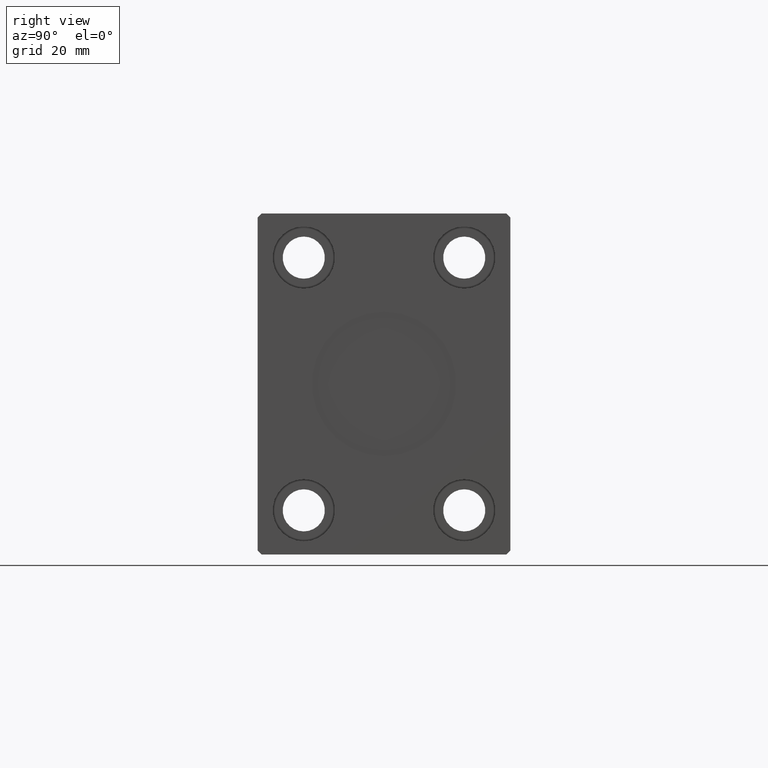
[diagram: clean part render]
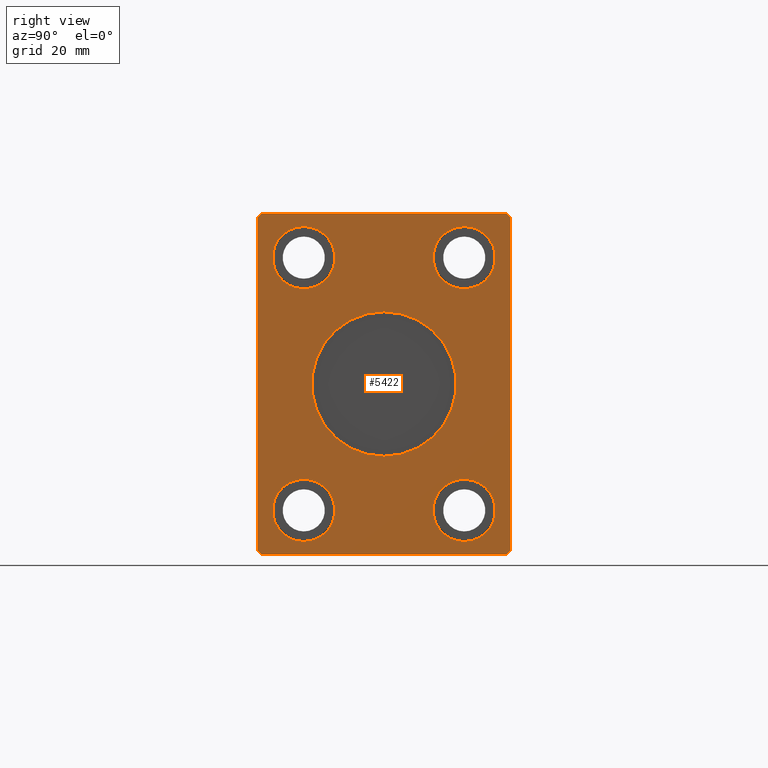
[diagram: same view with one face highlighted and labeled with its STEP entity id]
A machine part, right view. The second image highlights one B-rep face of the part: STEP entity #5422.
In plain terms, the highlighted planar face has unit normal (1, 0, 0).
Its self-contained STEP definition (entity closure, byte-faithful):
#448 = CARTESIAN_POINT ( 'NONE',  ( 121.0000000000000000, 30.50000000000001776, -42.50000000000000711 ) ) ;
#533 = EDGE_CURVE ( 'NONE', #19404, #16672, #11035, .T. ) ;
#715 = VERTEX_POINT ( 'NONE', #34542 ) ;
#874 = DIRECTION ( 'NONE',  ( -1.000000000000000000, -0.000000000000000000, -0.000000000000000000 ) ) ;
#1032 = CARTESIAN_POINT ( 'NONE',  ( 121.0000000000000000, -31.50000000000000000, -41.50000000000000711 ) ) ;
#1112 = CARTESIAN_POINT ( 'NONE',  ( 121.0000000000000000, 31.50000000000001421, -41.50000000000000711 ) ) ;
#1465 = VERTEX_POINT ( 'NONE', #13036 ) ;
#1784 = CARTESIAN_POINT ( 'NONE',  ( 121.0000000000000000, 20.00000000000000355, 23.75000000000001421 ) ) ;
#1928 = LINE ( 'NONE', #33608, #44946 ) ;
#2213 = ORIENTED_EDGE ( 'NONE', *, *, #38130, .T. ) ;
#2462 = AXIS2_PLACEMENT_3D ( 'NONE', #6098, #40993, #20446 ) ;
#2761 = ORIENTED_EDGE ( 'NONE', *, *, #25482, .F. ) ;
#3336 = EDGE_CURVE ( 'NONE', #715, #27313, #29779, .T. ) ;
#3538 = CARTESIAN_POINT ( 'NONE',  ( 121.0000000000000000, 30.50000000000001776, -42.50000000000000711 ) ) ;
#3931 = VERTEX_POINT ( 'NONE', #448 ) ;
#3935 = DIRECTION ( 'NONE',  ( 0.000000000000000000, 0.000000000000000000, 1.000000000000000000 ) ) ;
#4056 = VERTEX_POINT ( 'NONE', #33505 ) ;
#4385 = DIRECTION ( 'NONE',  ( 0.000000000000000000, -0.7071067811865474617, 0.7071067811865474617 ) ) ;
#4749 = CIRCLE ( 'NONE', #29487, 7.750000000000000000 ) ;
#4754 = CARTESIAN_POINT ( 'NONE',  ( 121.0000000000000000, 20.00000000000000355, 31.50000000000001421 ) ) ;
#4931 = DIRECTION ( 'NONE',  ( 0.000000000000000000, 1.000000000000000000, 0.000000000000000000 ) ) ;
#5170 = CARTESIAN_POINT ( 'NONE',  ( 121.0000000000000000, -19.99999999999999645, 39.25000000000001421 ) ) ;
#5339 = CARTESIAN_POINT ( 'NONE',  ( 121.0000000000000000, -19.99999999999999645, -23.74999999999998579 ) ) ;
#5422 = ADVANCED_FACE ( 'NONE', ( #36876, #13614, #44432, #6318, #5876, #41219 ), #13175, .T. ) ;
#5556 = VERTEX_POINT ( 'NONE', #1032 ) ;
#5876 = FACE_BOUND ( 'NONE', #36661, .T. ) ;
#5948 = CARTESIAN_POINT ( 'NONE',  ( 121.0000000000000000, -19.99999999999999645, -31.49999999999998579 ) ) ;
#6098 = CARTESIAN_POINT ( 'NONE',  ( 121.0000000000000000, 0.000000000000000000, 0.000000000000000000 ) ) ;
#6318 = FACE_OUTER_BOUND ( 'NONE', #19298, .T. ) ;
#6349 = CIRCLE ( 'NONE', #12171, 7.750000000000000000 ) ;
#6958 = AXIS2_PLACEMENT_3D ( 'NONE', #26341, #36613, #8571 ) ;
#7269 = DIRECTION ( 'NONE',  ( 1.000000000000000000, -0.000000000000000000, -0.000000000000000000 ) ) ;
#7836 = LINE ( 'NONE', #3538, #11479 ) ;
#8391 = AXIS2_PLACEMENT_3D ( 'NONE', #17979, #874, #28916 ) ;
#8425 = VECTOR ( 'NONE', #4931, 1000.000000000000000 ) ;
#8571 = DIRECTION ( 'NONE',  ( 0.000000000000000000, 0.000000000000000000, 1.000000000000000000 ) ) ;
#8879 = ORIENTED_EDGE ( 'NONE', *, *, #36147, .T. ) ;
#9280 = CIRCLE ( 'NONE', #40605, 7.750000000000000000 ) ;
#9373 = DIRECTION ( 'NONE',  ( 0.000000000000000000, 0.000000000000000000, -1.000000000000000000 ) ) ;
#9591 = AXIS2_PLACEMENT_3D ( 'NONE', #17617, #14438, #35172 ) ;
#10049 = ORIENTED_EDGE ( 'NONE', *, *, #11659, .T. ) ;
#10850 = CARTESIAN_POINT ( 'NONE',  ( 121.0000000000000000, -31.50000000000000000, 41.49999999999999289 ) ) ;
#11035 = CIRCLE ( 'NONE', #9591, 7.750000000000000000 ) ;
#11194 = AXIS2_PLACEMENT_3D ( 'NONE', #13190, #27075, #13413 ) ;
#11479 = VECTOR ( 'NONE', #17638, 999.9999999999998863 ) ;
#11659 = EDGE_CURVE ( 'NONE', #43876, #1465, #31505, .T. ) ;
#11848 = VECTOR ( 'NONE', #15650, 1000.000000000000000 ) ;
#11979 = CARTESIAN_POINT ( 'NONE',  ( 121.0000000000000000, 20.00000000000000355, -23.74999999999998579 ) ) ;
#11997 = CARTESIAN_POINT ( 'NONE',  ( 121.0000000000000000, 30.50000000000001421, 42.49999999999999289 ) ) ;
#12171 = AXIS2_PLACEMENT_3D ( 'NONE', #5948, #37410, #9373 ) ;
#13036 = CARTESIAN_POINT ( 'NONE',  ( 121.0000000000000000, 31.50000000000001421, 41.49999999999999289 ) ) ;
#13175 = PLANE ( 'NONE',  #2462 ) ;
#13190 = CARTESIAN_POINT ( 'NONE',  ( 121.0000000000000000, -19.99999999999999645, 31.50000000000001421 ) ) ;
#13392 = DIRECTION ( 'NONE',  ( 0.000000000000000000, 0.000000000000000000, 1.000000000000000000 ) ) ;
#13413 = DIRECTION ( 'NONE',  ( 0.000000000000000000, 0.000000000000000000, 1.000000000000000000 ) ) ;
#13609 = CARTESIAN_POINT ( 'NONE',  ( 121.0000000000000000, 20.00000000000000355, -31.49999999999998579 ) ) ;
#13614 = FACE_BOUND ( 'NONE', #43963, .T. ) ;
#14189 = CARTESIAN_POINT ( 'NONE',  ( 121.0000000000000000, 31.50000000000001421, -41.50000000000000711 ) ) ;
#14438 = DIRECTION ( 'NONE',  ( 1.000000000000000000, -0.000000000000000000, -0.000000000000000000 ) ) ;
#14826 = ORIENTED_EDGE ( 'NONE', *, *, #25458, .T. ) ;
#15650 = DIRECTION ( 'NONE',  ( 0.000000000000000000, -1.000000000000000000, 0.000000000000000000 ) ) ;
#15853 = EDGE_LOOP ( 'NONE', ( #2761, #21052 ) ) ;
#16071 = CARTESIAN_POINT ( 'NONE',  ( 121.0000000000000000, 0.000000000000000000, 0.000000000000000000 ) ) ;
#16165 = EDGE_LOOP ( 'NONE', ( #34302, #17650 ) ) ;
#16364 = LINE ( 'NONE', #19776, #42155 ) ;
#16517 = EDGE_CURVE ( 'NONE', #28968, #24656, #43948, .T. ) ;
#16672 = VERTEX_POINT ( 'NONE', #5339 ) ;
#17617 = CARTESIAN_POINT ( 'NONE',  ( 121.0000000000000000, -19.99999999999999645, -31.49999999999998579 ) ) ;
#17638 = DIRECTION ( 'NONE',  ( 0.000000000000000000, 0.7071067811865462405, 0.7071067811865489050 ) ) ;
#17650 = ORIENTED_EDGE ( 'NONE', *, *, #32011, .T. ) ;
#17979 = CARTESIAN_POINT ( 'NONE',  ( 121.0000000000000000, -19.99999999999999645, 31.50000000000001421 ) ) ;
#18061 = LINE ( 'NONE', #24674, #28926 ) ;
#19031 = DIRECTION ( 'NONE',  ( 0.000000000000000000, 0.000000000000000000, -1.000000000000000000 ) ) ;
#19298 = EDGE_LOOP ( 'NONE', ( #34737, #30721, #38672, #2213, #8879, #41923, #32229, #10049 ) ) ;
#19404 = VERTEX_POINT ( 'NONE', #39354 ) ;
#19495 = AXIS2_PLACEMENT_3D ( 'NONE', #16071, #26090, #19031 ) ;
#19776 = CARTESIAN_POINT ( 'NONE',  ( 121.0000000000000000, -31.50000000000000000, 41.49999999999999289 ) ) ;
#20446 = DIRECTION ( 'NONE',  ( 0.000000000000000000, 0.000000000000000000, -1.000000000000000000 ) ) ;
#20909 = CARTESIAN_POINT ( 'NONE',  ( 121.0000000000000000, -30.50000000000000355, 42.49999999999999289 ) ) ;
#21052 = ORIENTED_EDGE ( 'NONE', *, *, #35337, .F. ) ;
#21098 = DIRECTION ( 'NONE',  ( -1.000000000000000000, -0.000000000000000000, -0.000000000000000000 ) ) ;
#21745 = CARTESIAN_POINT ( 'NONE',  ( 121.0000000000000000, 0.000000000000000000, 0.000000000000000000 ) ) ;
#22517 = EDGE_CURVE ( 'NONE', #34921, #27462, #30863, .T. ) ;
#22864 = VERTEX_POINT ( 'NONE', #1784 ) ;
#23160 = DIRECTION ( 'NONE',  ( 1.000000000000000000, -0.000000000000000000, -0.000000000000000000 ) ) ;
#23409 = CARTESIAN_POINT ( 'NONE',  ( 121.0000000000000000, 20.00000000000000355, -39.24999999999998579 ) ) ;
#23952 = ORIENTED_EDGE ( 'NONE', *, *, #22517, .T. ) ;
#24247 = AXIS2_PLACEMENT_3D ( 'NONE', #21745, #38863, #31780 ) ;
#24656 = VERTEX_POINT ( 'NONE', #30799 ) ;
#24674 = CARTESIAN_POINT ( 'NONE',  ( 121.0000000000000000, 31.50000000000001421, 41.49999999999999289 ) ) ;
#25294 = VECTOR ( 'NONE', #39822, 1000.000000000000114 ) ;
#25458 = EDGE_CURVE ( 'NONE', #27462, #34921, #32402, .T. ) ;
#25482 = EDGE_CURVE ( 'NONE', #22864, #4056, #4749, .T. ) ;
#25609 = ORIENTED_EDGE ( 'NONE', *, *, #533, .F. ) ;
#25653 = CARTESIAN_POINT ( 'NONE',  ( 121.0000000000000000, 20.00000000000000355, 31.50000000000001421 ) ) ;
#26090 = DIRECTION ( 'NONE',  ( 1.000000000000000000, 0.000000000000000000, 0.000000000000000000 ) ) ;
#26341 = CARTESIAN_POINT ( 'NONE',  ( 121.0000000000000000, 20.00000000000000355, -31.49999999999998579 ) ) ;
#26455 = CARTESIAN_POINT ( 'NONE',  ( 121.0000000000000000, -19.99999999999999645, 23.75000000000001421 ) ) ;
#26533 = EDGE_CURVE ( 'NONE', #34962, #3931, #26578, .T. ) ;
#26561 = EDGE_CURVE ( 'NONE', #40244, #32898, #26624, .T. ) ;
#26578 = LINE ( 'NONE', #30232, #8425 ) ;
#26624 = CIRCLE ( 'NONE', #6958, 7.750000000000000000 ) ;
#27075 = DIRECTION ( 'NONE',  ( -1.000000000000000000, -0.000000000000000000, -0.000000000000000000 ) ) ;
#27313 = VERTEX_POINT ( 'NONE', #20909 ) ;
#27462 = VERTEX_POINT ( 'NONE', #5170 ) ;
#27574 = CARTESIAN_POINT ( 'NONE',  ( 121.0000000000000000, -30.50000000000000711, -42.50000000000000711 ) ) ;
#28027 = ORIENTED_EDGE ( 'NONE', *, *, #16517, .F. ) ;
#28132 = CIRCLE ( 'NONE', #28960, 7.750000000000000000 ) ;
#28916 = DIRECTION ( 'NONE',  ( 0.000000000000000000, 0.000000000000000000, 1.000000000000000000 ) ) ;
#28926 = VECTOR ( 'NONE', #4385, 1000.000000000000114 ) ;
#28960 = AXIS2_PLACEMENT_3D ( 'NONE', #13609, #21098, #13392 ) ;
#28968 = VERTEX_POINT ( 'NONE', #39150 ) ;
#29487 = AXIS2_PLACEMENT_3D ( 'NONE', #4754, #7269, #42175 ) ;
#29620 = EDGE_LOOP ( 'NONE', ( #44178, #28027 ) ) ;
#29745 = DIRECTION ( 'NONE',  ( 0.000000000000000000, -0.7071067811865462405, -0.7071067811865489050 ) ) ;
#29779 = LINE ( 'NONE', #11997, #11848 ) ;
#30229 = EDGE_CURVE ( 'NONE', #27313, #44990, #1928, .T. ) ;
#30232 = CARTESIAN_POINT ( 'NONE',  ( 121.0000000000000000, -30.50000000000000711, -42.50000000000000711 ) ) ;
#30235 = CARTESIAN_POINT ( 'NONE',  ( 121.0000000000000000, -31.50000000000000000, -41.50000000000000711 ) ) ;
#30721 = ORIENTED_EDGE ( 'NONE', *, *, #3336, .T. ) ;
#30799 = CARTESIAN_POINT ( 'NONE',  ( 121.0000000000000000, 0.000000000000000000, -18.00000000000000000 ) ) ;
#30863 = CIRCLE ( 'NONE', #11194, 7.750000000000000000 ) ;
#31090 = EDGE_CURVE ( 'NONE', #1465, #715, #18061, .T. ) ;
#31505 = LINE ( 'NONE', #14189, #43114 ) ;
#31780 = DIRECTION ( 'NONE',  ( 0.000000000000000000, 0.000000000000000000, -1.000000000000000000 ) ) ;
#32011 = EDGE_CURVE ( 'NONE', #32898, #40244, #28132, .T. ) ;
#32229 = ORIENTED_EDGE ( 'NONE', *, *, #35652, .T. ) ;
#32285 = EDGE_CURVE ( 'NONE', #24656, #28968, #32601, .T. ) ;
#32402 = CIRCLE ( 'NONE', #8391, 7.750000000000000000 ) ;
#32601 = CIRCLE ( 'NONE', #19495, 18.00000000000000000 ) ;
#32898 = VERTEX_POINT ( 'NONE', #11979 ) ;
#33505 = CARTESIAN_POINT ( 'NONE',  ( 121.0000000000000000, 20.00000000000000355, 39.25000000000001421 ) ) ;
#33608 = CARTESIAN_POINT ( 'NONE',  ( 121.0000000000000000, -30.50000000000000355, 42.49999999999999289 ) ) ;
#33648 = LINE ( 'NONE', #30235, #25294 ) ;
#34302 = ORIENTED_EDGE ( 'NONE', *, *, #26561, .T. ) ;
#34542 = CARTESIAN_POINT ( 'NONE',  ( 121.0000000000000000, 30.50000000000001421, 42.49999999999999289 ) ) ;
#34737 = ORIENTED_EDGE ( 'NONE', *, *, #31090, .T. ) ;
#34816 = EDGE_CURVE ( 'NONE', #16672, #19404, #6349, .T. ) ;
#34921 = VERTEX_POINT ( 'NONE', #26455 ) ;
#34962 = VERTEX_POINT ( 'NONE', #27574 ) ;
#35172 = DIRECTION ( 'NONE',  ( 0.000000000000000000, 0.000000000000000000, -1.000000000000000000 ) ) ;
#35337 = EDGE_CURVE ( 'NONE', #4056, #22864, #9280, .T. ) ;
#35652 = EDGE_CURVE ( 'NONE', #3931, #43876, #7836, .T. ) ;
#36147 = EDGE_CURVE ( 'NONE', #5556, #34962, #33648, .T. ) ;
#36613 = DIRECTION ( 'NONE',  ( -1.000000000000000000, -0.000000000000000000, -0.000000000000000000 ) ) ;
#36661 = EDGE_LOOP ( 'NONE', ( #25609, #37376 ) ) ;
#36839 = DIRECTION ( 'NONE',  ( 0.000000000000000000, 0.000000000000000000, -1.000000000000000000 ) ) ;
#36876 = FACE_BOUND ( 'NONE', #29620, .T. ) ;
#37376 = ORIENTED_EDGE ( 'NONE', *, *, #34816, .F. ) ;
#37410 = DIRECTION ( 'NONE',  ( 1.000000000000000000, -0.000000000000000000, -0.000000000000000000 ) ) ;
#38130 = EDGE_CURVE ( 'NONE', #44990, #5556, #16364, .T. ) ;
#38672 = ORIENTED_EDGE ( 'NONE', *, *, #30229, .T. ) ;
#38863 = DIRECTION ( 'NONE',  ( 1.000000000000000000, 0.000000000000000000, 0.000000000000000000 ) ) ;
#39150 = CARTESIAN_POINT ( 'NONE',  ( 121.0000000000000000, 2.204364238465235428E-15, 18.00000000000000000 ) ) ;
#39354 = CARTESIAN_POINT ( 'NONE',  ( 121.0000000000000000, -19.99999999999999645, -39.24999999999998579 ) ) ;
#39822 = DIRECTION ( 'NONE',  ( 0.000000000000000000, 0.7071067811865451302, -0.7071067811865500152 ) ) ;
#40244 = VERTEX_POINT ( 'NONE', #23409 ) ;
#40605 = AXIS2_PLACEMENT_3D ( 'NONE', #25653, #23160, #36839 ) ;
#40993 = DIRECTION ( 'NONE',  ( 1.000000000000000000, 0.000000000000000000, 0.000000000000000000 ) ) ;
#41000 = DIRECTION ( 'NONE',  ( 0.000000000000000000, 0.000000000000000000, -1.000000000000000000 ) ) ;
#41219 = FACE_BOUND ( 'NONE', #15853, .T. ) ;
#41923 = ORIENTED_EDGE ( 'NONE', *, *, #26533, .T. ) ;
#42155 = VECTOR ( 'NONE', #41000, 1000.000000000000000 ) ;
#42175 = DIRECTION ( 'NONE',  ( 0.000000000000000000, 0.000000000000000000, -1.000000000000000000 ) ) ;
#43114 = VECTOR ( 'NONE', #3935, 1000.000000000000000 ) ;
#43876 = VERTEX_POINT ( 'NONE', #1112 ) ;
#43948 = CIRCLE ( 'NONE', #24247, 18.00000000000000000 ) ;
#43963 = EDGE_LOOP ( 'NONE', ( #23952, #14826 ) ) ;
#44178 = ORIENTED_EDGE ( 'NONE', *, *, #32285, .F. ) ;
#44432 = FACE_BOUND ( 'NONE', #16165, .T. ) ;
#44946 = VECTOR ( 'NONE', #29745, 999.9999999999998863 ) ;
#44990 = VERTEX_POINT ( 'NONE', #10850 ) ;